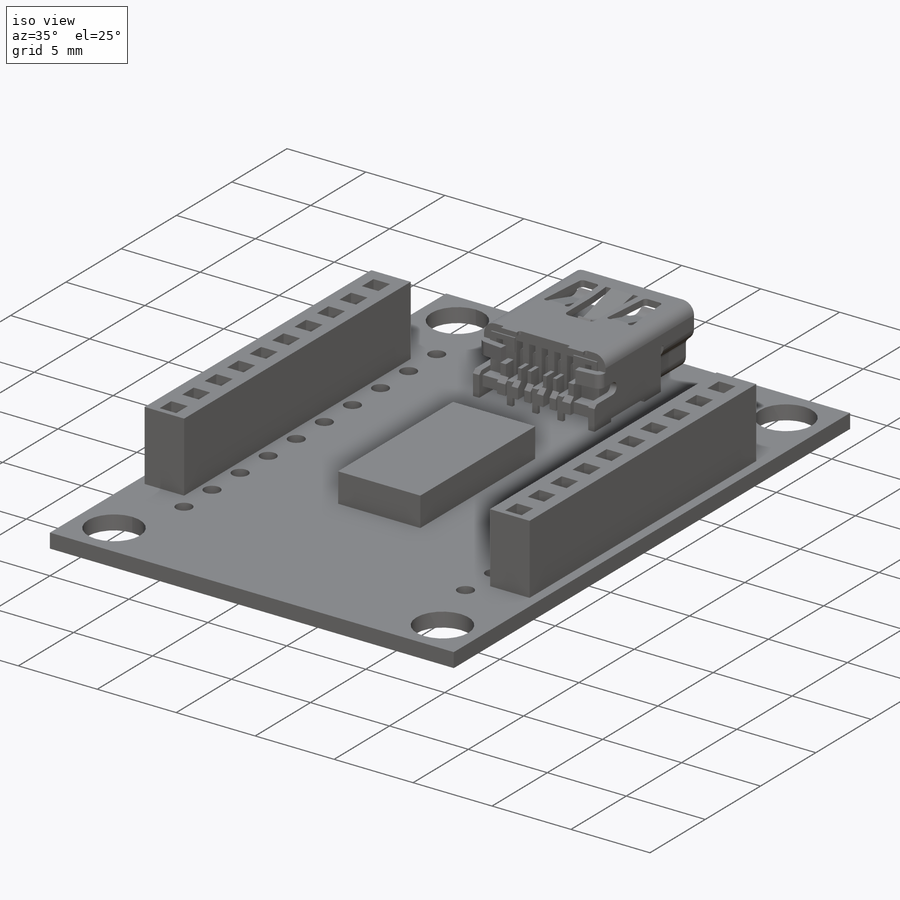
[diagram: iso view]
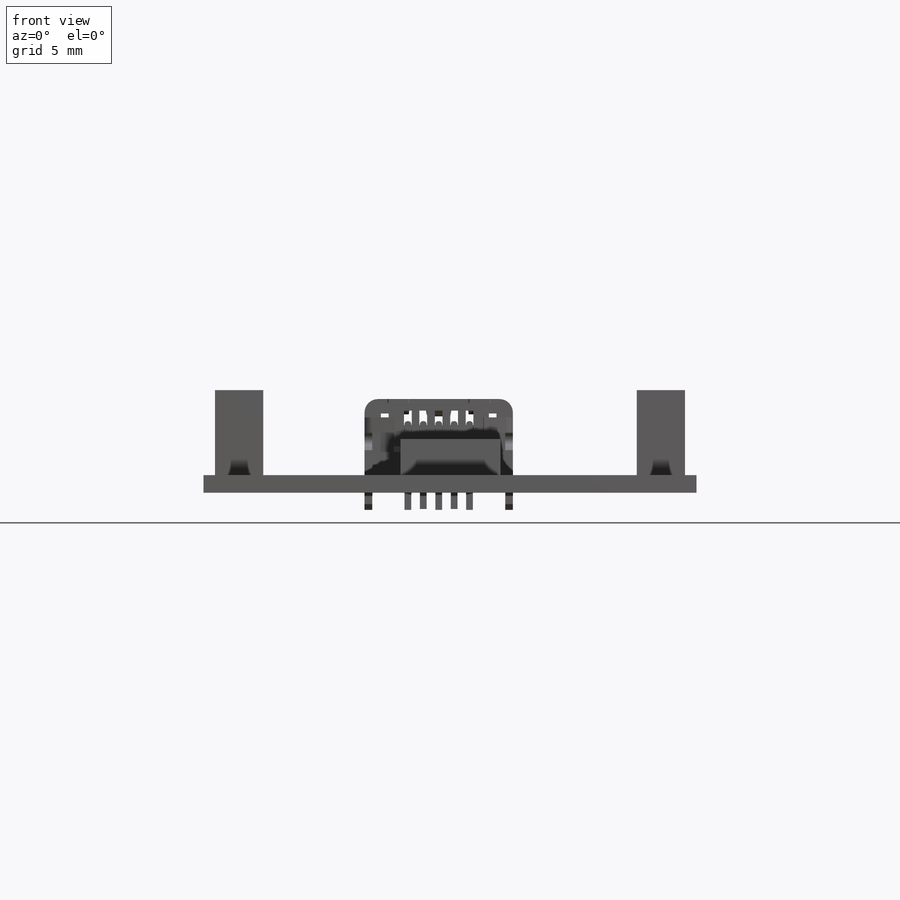
[diagram: front view]
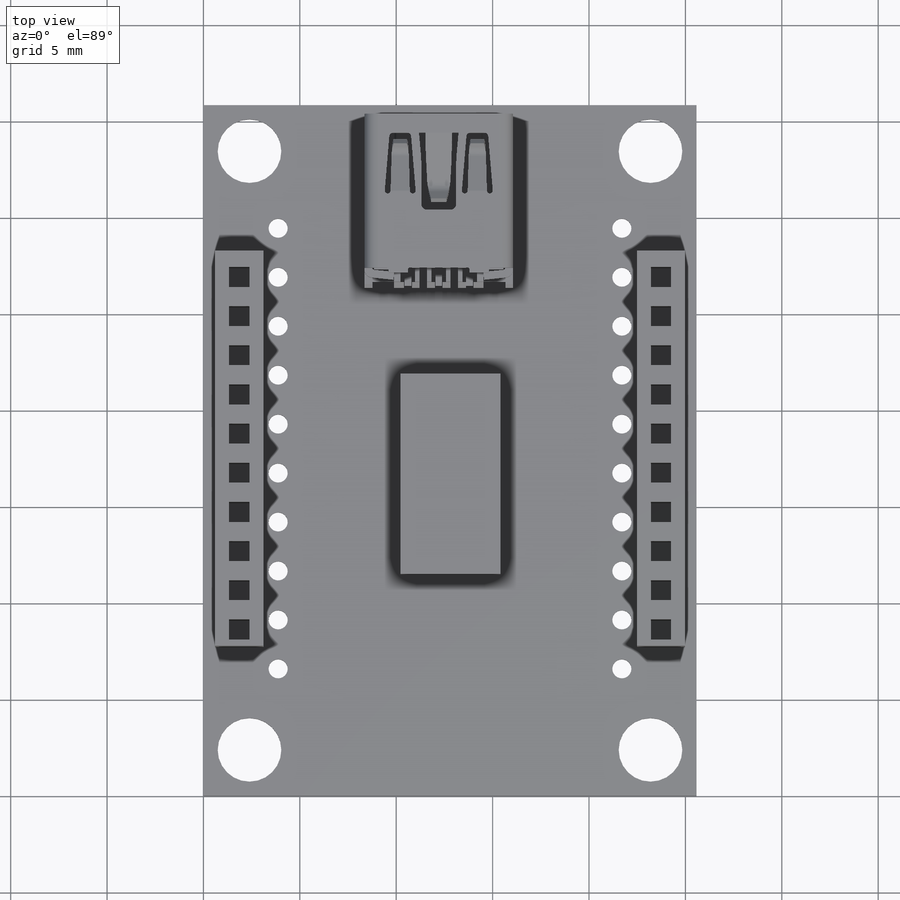
[diagram: top view]
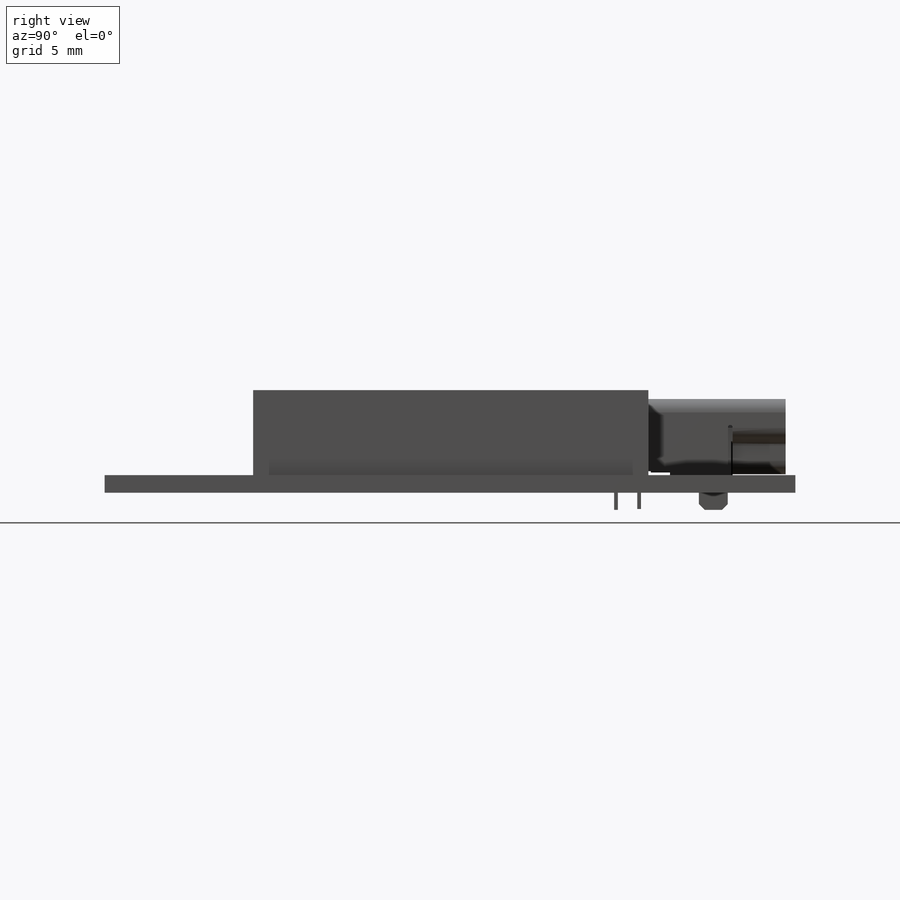
[diagram: right view]
SOLIDWORKS PART (.sldprt)
format: sldprt  version: not decoded by parser v0  size: 1,250,816 bytes
history: native  units: mm
features: sketch x6, extrude x3, cut_extrude x3, material x1, move_body x1 + 1 further entry (+17 scaffold rows collapsed; 5 parser-record rows omitted)
feature tree (37):
  scaffold x17  (default folders/planes/origin — collapsed)
  material  "Material <not specified>"
  sketch  "Sketch1"  dims[D1=25.5778mm D2=35.8394mm]
  extrude  "Boss-Extrude1"  Depth=0.9144mm
  sketch  "Sketch2"  dims[D1=3.302mm D2=0.7366mm D3=0.7366mm D4=0.7366mm D5=0.7366mm]
  cut_extrude  "Cut-Extrude2"  [1 undecoded]
  "User Library-USB-Mini-B"
  parser-record x5  (decoder bookkeeping rows leaked as tree rows — omitted from the tree; the rows remain in map.json)
  move_body  "Body-Move/Copy2"
  sketch  "Sketch3"  dims[D1=2.5mm D2=20.5mm D3=0.6mm D4=7.63mm]
  extrude  "Boss-Extrude2"  Depth=4.41mm
  sketch  "Sketch4"  dims[D1=1.05mm D2=0.84mm D3=10.0]
  cut_extrude  "Cut-Extrude3"  Depth=3.97mm
  sketch  "Sketch5"  dims[D1=10.3886mm D2=5.207mm D3=24.3586mm D4=15.367mm]
  extrude  "Boss-Extrude3"  Depth=1.8542mm
  sketch  "Sketch6"  dims[D1=0.9906mm D2=3.3782mm D3=5.8928mm D4=10.0]
  cut_extrude  "Cut-Extrude4"  [1 undecoded]
decode coverage: 10 of 13 modeling features carry decoded parameters; 1 rows unclassified (native names shown)
note: 2 parameter values undecoded
note: suppression state not decoded; provenance and decode notes live in map.json
